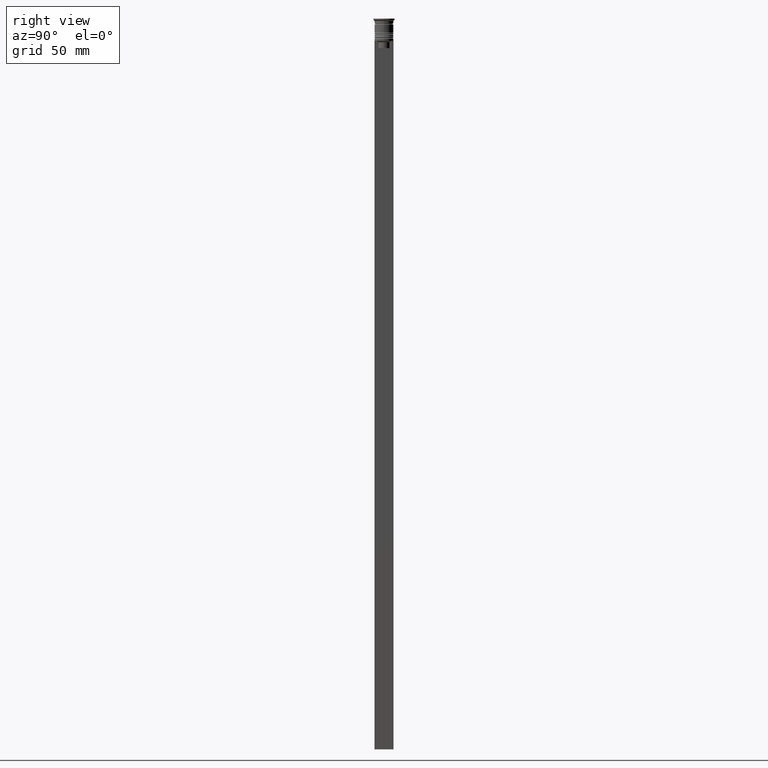
[diagram: clean part render]
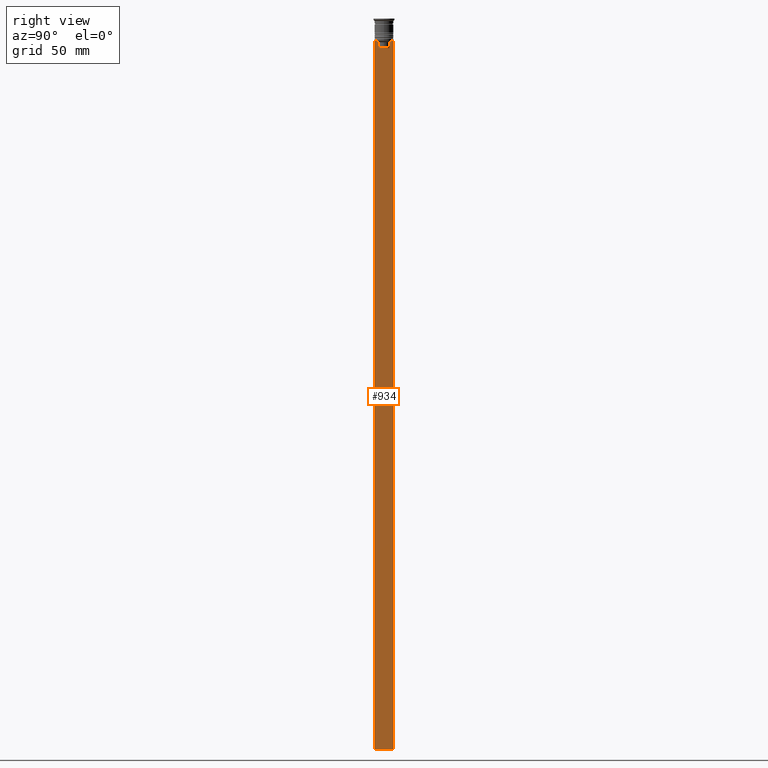
[diagram: same view with one face highlighted and labeled with its STEP entity id]
A machine part, right view. The second image highlights one B-rep face of the part: STEP entity #934.
In plain terms, the highlighted planar face has unit normal (-1, 0, 0).
Its self-contained STEP definition (entity closure, byte-faithful):
#12 = VERTEX_POINT ( 'NONE', #1890 ) ;
#54 = CARTESIAN_POINT ( 'NONE',  ( 0.5000000000000000000, -4.000000000000000000, -309.5000000000000000 ) ) ;
#69 = VECTOR ( 'NONE', #1559, 1000.000000000000000 ) ;
#99 = VERTEX_POINT ( 'NONE', #388 ) ;
#125 = VERTEX_POINT ( 'NONE', #817 ) ;
#150 = CARTESIAN_POINT ( 'NONE',  ( 0.5000000000000000000, -4.000000000000000000, -1.437742251701450202 ) ) ;
#160 = EDGE_CURVE ( 'NONE', #99, #12, #1158, .T. ) ;
#166 = LINE ( 'NONE', #1970, #69 ) ;
#191 = CARTESIAN_POINT ( 'NONE',  ( 0.5000000000000000000, 2.399999999999996803, -12.50000000000000000 ) ) ;
#196 = VERTEX_POINT ( 'NONE', #204 ) ;
#200 = PLANE ( 'NONE',  #2104 ) ;
#204 = CARTESIAN_POINT ( 'NONE',  ( 0.5000000000000000000, 3.867815921162741422, -9.500000000000000000 ) ) ;
#249 = CARTESIAN_POINT ( 'NONE',  ( 0.5000000000000000000, -4.000000000000000000, -9.500000000000000000 ) ) ;
#253 = CARTESIAN_POINT ( 'NONE',  ( 0.5000000000000000000, -2.347338918861097135, 0.000000000000000000 ) ) ;
#285 = LINE ( 'NONE', #1099, #1330 ) ;
#288 = EDGE_CURVE ( 'NONE', #2334, #1233, #650, .T. ) ;
#388 = CARTESIAN_POINT ( 'NONE',  ( 0.5000000000000000000, 2.347338918861097135, -12.50000000000000000 ) ) ;
#398 = DIRECTION ( 'NONE',  ( 0.000000000000000000, 0.000000000000000000, -1.000000000000000000 ) ) ;
#438 = CARTESIAN_POINT ( 'NONE',  ( 0.5000000000000000000, -2.517408374291112416, -9.833662228483172285 ) ) ;
#446 = CARTESIAN_POINT ( 'NONE',  ( 0.5000000000000000000, 2.687094542495898075, -9.666938847453439010 ) ) ;
#457 = VERTEX_POINT ( 'NONE', #2147 ) ;
#461 = CARTESIAN_POINT ( 'NONE',  ( 0.5000000000000000000, -4.000000000000000000, -9.500000000000000000 ) ) ;
#498 = EDGE_CURVE ( 'NONE', #1233, #2047, #1399, .T. ) ;
#515 = DIRECTION ( 'NONE',  ( 0.000000000000000000, 0.000000000000000000, -1.000000000000000000 ) ) ;
#595 = ORIENTED_EDGE ( 'NONE', *, *, #498, .T. ) ;
#650 = LINE ( 'NONE', #461, #1082 ) ;
#685 = VECTOR ( 'NONE', #1818, 1000.000000000000000 ) ;
#717 = VECTOR ( 'NONE', #1030, 1000.000000000000000 ) ;
#767 = ORIENTED_EDGE ( 'NONE', *, *, #2124, .T. ) ;
#771 = CARTESIAN_POINT ( 'NONE',  ( 0.5000000000000000000, -4.000000000000000000, -9.500000000000000000 ) ) ;
#790 = CARTESIAN_POINT ( 'NONE',  ( 0.5000000000000000000, -4.000000000000000000, -1.437742251701450202 ) ) ;
#817 = CARTESIAN_POINT ( 'NONE',  ( 0.5000000000000000000, 4.000000000000000000, -9.500000000000000000 ) ) ;
#837 = CARTESIAN_POINT ( 'NONE',  ( 0.5000000000000000000, -2.687095498514037839, -9.666937905752043037 ) ) ;
#861 = VERTEX_POINT ( 'NONE', #2257 ) ;
#907 = CARTESIAN_POINT ( 'NONE',  ( 0.5000000000000000000, 2.856571371417138572, -9.500000000000000000 ) ) ;
#918 = ORIENTED_EDGE ( 'NONE', *, *, #1896, .T. ) ;
#927 = ORIENTED_EDGE ( 'NONE', *, *, #288, .T. ) ;
#934 = ADVANCED_FACE ( 'NONE', ( #1391 ), #200, .F. ) ;
#963 = ORIENTED_EDGE ( 'NONE', *, *, #1035, .T. ) ;
#985 = ORIENTED_EDGE ( 'NONE', *, *, #1124, .T. ) ;
#1000 = VECTOR ( 'NONE', #1749, 1000.000000000000000 ) ;
#1016 = LINE ( 'NONE', #2366, #1254 ) ;
#1030 = DIRECTION ( 'NONE',  ( 0.000000000000000000, -1.000000000000000000, 0.000000000000000000 ) ) ;
#1035 = EDGE_CURVE ( 'NONE', #196, #1206, #1209, .T. ) ;
#1038 = EDGE_LOOP ( 'NONE', ( #963, #1183, #767, #1927, #985, #1985, #1108, #927, #595, #2493, #1874, #918 ) ) ;
#1068 = EDGE_CURVE ( 'NONE', #1206, #457, #1385, .T. ) ;
#1082 = VECTOR ( 'NONE', #1226, 1000.000000000000000 ) ;
#1099 = CARTESIAN_POINT ( 'NONE',  ( 0.5000000000000000000, 2.347338918861097135, 0.000000000000000000 ) ) ;
#1108 = ORIENTED_EDGE ( 'NONE', *, *, #2014, .T. ) ;
#1124 = EDGE_CURVE ( 'NONE', #12, #861, #1416, .T. ) ;
#1142 = B_SPLINE_CURVE_WITH_KNOTS ( 'NONE', 3,
 ( #1185, #438, #837, #1620 ),
 .UNSPECIFIED., .F., .F.,
 ( 4, 4 ),
 ( 0.01178336557230038467, 0.01249758354768160280 ),
 .UNSPECIFIED. ) ;
#1158 = LINE ( 'NONE', #191, #1000 ) ;
#1183 = ORIENTED_EDGE ( 'NONE', *, *, #1068, .T. ) ;
#1185 = CARTESIAN_POINT ( 'NONE',  ( 0.5000000000000000000, -2.347338918861097135, -10.00000000000000000 ) ) ;
#1206 = VERTEX_POINT ( 'NONE', #907 ) ;
#1209 = LINE ( 'NONE', #771, #2319 ) ;
#1219 = CARTESIAN_POINT ( 'NONE',  ( 0.5000000000000000000, 4.000000000000000000, -309.5000000000000000 ) ) ;
#1223 = CARTESIAN_POINT ( 'NONE',  ( 0.5000000000000000000, 2.517407211010872281, -9.833663366238582171 ) ) ;
#1226 = DIRECTION ( 'NONE',  ( 0.000000000000000000, -1.000000000000000000, 0.000000000000000000 ) ) ;
#1233 = VERTEX_POINT ( 'NONE', #1692 ) ;
#1254 = VECTOR ( 'NONE', #398, 1000.000000000000000 ) ;
#1330 = VECTOR ( 'NONE', #515, 1000.000000000000000 ) ;
#1332 = LINE ( 'NONE', #2333, #1369 ) ;
#1369 = VECTOR ( 'NONE', #2133, 1000.000000000000000 ) ;
#1385 = B_SPLINE_CURVE_WITH_KNOTS ( 'NONE', 3,
 ( #2205, #446, #1223, #2438 ),
 .UNSPECIFIED., .F., .F.,
 ( 4, 4 ),
 ( 0.004956812174141191595, 0.005670477137898149653 ),
 .UNSPECIFIED. ) ;
#1391 = FACE_OUTER_BOUND ( 'NONE', #1038, .T. ) ;
#1399 = LINE ( 'NONE', #790, #1901 ) ;
#1416 = LINE ( 'NONE', #253, #685 ) ;
#1430 = EDGE_CURVE ( 'NONE', #2047, #1966, #1332, .T. ) ;
#1448 = CARTESIAN_POINT ( 'NONE',  ( 0.5000000000000000000, -2.856571371417138572, -9.500000000000000000 ) ) ;
#1559 = DIRECTION ( 'NONE',  ( 0.000000000000000000, -1.000000000000000000, 0.000000000000000000 ) ) ;
#1593 = DIRECTION ( 'NONE',  ( 0.000000000000000000, 0.000000000000000000, 1.000000000000000000 ) ) ;
#1620 = CARTESIAN_POINT ( 'NONE',  ( 0.5000000000000000000, -2.856571371417138572, -9.500000000000000000 ) ) ;
#1692 = CARTESIAN_POINT ( 'NONE',  ( 0.5000000000000000000, -4.000000000000000000, -9.500000000000000000 ) ) ;
#1749 = DIRECTION ( 'NONE',  ( 0.000000000000000000, -1.000000000000000000, 0.000000000000000000 ) ) ;
#1771 = CARTESIAN_POINT ( 'NONE',  ( 0.5000000000000000000, -3.867815921162741422, -9.500000000000000000 ) ) ;
#1818 = DIRECTION ( 'NONE',  ( -0.000000000000000000, -0.000000000000000000, 1.000000000000000000 ) ) ;
#1874 = ORIENTED_EDGE ( 'NONE', *, *, #2420, .F. ) ;
#1890 = CARTESIAN_POINT ( 'NONE',  ( 0.5000000000000000000, -2.347338918861097135, -12.50000000000000000 ) ) ;
#1896 = EDGE_CURVE ( 'NONE', #125, #196, #166, .T. ) ;
#1901 = VECTOR ( 'NONE', #2359, 1000.000000000000000 ) ;
#1927 = ORIENTED_EDGE ( 'NONE', *, *, #160, .T. ) ;
#1954 = VERTEX_POINT ( 'NONE', #1448 ) ;
#1964 = DIRECTION ( 'NONE',  ( 0.000000000000000000, -1.000000000000000000, 0.000000000000000000 ) ) ;
#1966 = VERTEX_POINT ( 'NONE', #1219 ) ;
#1970 = CARTESIAN_POINT ( 'NONE',  ( 0.5000000000000000000, -4.000000000000000000, -9.500000000000000000 ) ) ;
#1982 = LINE ( 'NONE', #249, #717 ) ;
#1985 = ORIENTED_EDGE ( 'NONE', *, *, #2427, .T. ) ;
#2014 = EDGE_CURVE ( 'NONE', #1954, #2334, #1982, .T. ) ;
#2047 = VERTEX_POINT ( 'NONE', #54 ) ;
#2104 = AXIS2_PLACEMENT_3D ( 'NONE', #150, #2347, #1593 ) ;
#2124 = EDGE_CURVE ( 'NONE', #457, #99, #285, .T. ) ;
#2133 = DIRECTION ( 'NONE',  ( 0.000000000000000000, 1.000000000000000000, 0.000000000000000000 ) ) ;
#2147 = CARTESIAN_POINT ( 'NONE',  ( 0.5000000000000000000, 2.347338918861097135, -10.00000000000000000 ) ) ;
#2205 = CARTESIAN_POINT ( 'NONE',  ( 0.5000000000000000000, 2.856571371417138572, -9.500000000000000000 ) ) ;
#2257 = CARTESIAN_POINT ( 'NONE',  ( 0.5000000000000000000, -2.347338918861097135, -10.00000000000000000 ) ) ;
#2319 = VECTOR ( 'NONE', #1964, 1000.000000000000000 ) ;
#2333 = CARTESIAN_POINT ( 'NONE',  ( 0.5000000000000000000, -4.000000000000000000, -309.5000000000000000 ) ) ;
#2334 = VERTEX_POINT ( 'NONE', #1771 ) ;
#2347 = DIRECTION ( 'NONE',  ( -1.000000000000000000, 0.000000000000000000, 0.000000000000000000 ) ) ;
#2359 = DIRECTION ( 'NONE',  ( 0.000000000000000000, 0.000000000000000000, -1.000000000000000000 ) ) ;
#2366 = CARTESIAN_POINT ( 'NONE',  ( 0.5000000000000000000, 4.000000000000000000, -1.437742251701450202 ) ) ;
#2420 = EDGE_CURVE ( 'NONE', #125, #1966, #1016, .T. ) ;
#2427 = EDGE_CURVE ( 'NONE', #861, #1954, #1142, .T. ) ;
#2438 = CARTESIAN_POINT ( 'NONE',  ( 0.5000000000000000000, 2.347338918861097135, -10.00000000000000000 ) ) ;
#2493 = ORIENTED_EDGE ( 'NONE', *, *, #1430, .T. ) ;